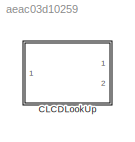
MODEL slx_aeac03d10259
KIND library
CONFIG AbsTol = auto
CONFIG EnableMultiTasking = off
CONFIG FixedStep = auto
CONFIG MaxStep = auto
CONFIG MinStep = auto
CONFIG RelTol = 1e-3
CONFIG SampleTimeConstraint = Unconstrained
CONFIG Solver = VariableStepAuto
CONFIG SolverName = VariableStepAuto
CONFIG StartTime = 0.0
CONFIG StopTime = 10.0
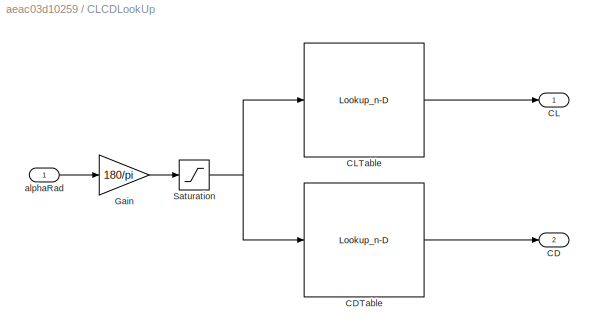
BLOCK [SubSystem] CLCDLookUp
  Ports = [1, 2]
  RequestExecContextInheritance = off
BLOCK [Outport] CLCDLookUp/CD
  Port = 2
BLOCK [Lookup_n-D] CLCDLookUp/CDTable
  BreakpointsForDimension1 = aeroStruct.alpha
  ExtrapMethod = Clip
  InternalRulePriority = Speed
  LookupTableObject = CLTable
  NumberOfTableDimensions = 1
  Ports = [1, 1]
  RndMeth = Simplest
  Table = aeroStruct.CD
  UseLastTableValue = on
BLOCK [Outport] CLCDLookUp/CL
BLOCK [Lookup_n-D] CLCDLookUp/CLTable
  BreakpointsForDimension1 = aeroStruct.alpha
  ExtrapMethod = Clip
  InternalRulePriority = Speed
  LookupTableObject = CLTable
  NumberOfTableDimensions = 1
  Ports = [1, 1]
  RndMeth = Simplest
  Table = aeroStruct.CL
  UseLastTableValue = on
BLOCK [Gain] CLCDLookUp/Gain
  Gain = 180/pi
BLOCK [Saturate] CLCDLookUp/Saturation
  LowerLimit = -90
  UpperLimit = 90
BLOCK [Inport] CLCDLookUp/alphaRad
LINE CLCDLookUp/CDTable:1 -> CLCDLookUp/CD:1
LINE CLCDLookUp/CLTable:1 -> CLCDLookUp/CL:1
LINE CLCDLookUp/Gain:1 -> CLCDLookUp/Saturation:1
NET CLCDLookUp/Saturation:1 -> CLCDLookUp/CDTable:1, CLCDLookUp/CLTable:1
LINE CLCDLookUp/alphaRad:1 -> CLCDLookUp/Gain:1
note: NET lines group one-source signal fan-out (src -> all destinations, sorted); 1:1 wires keep LINE
